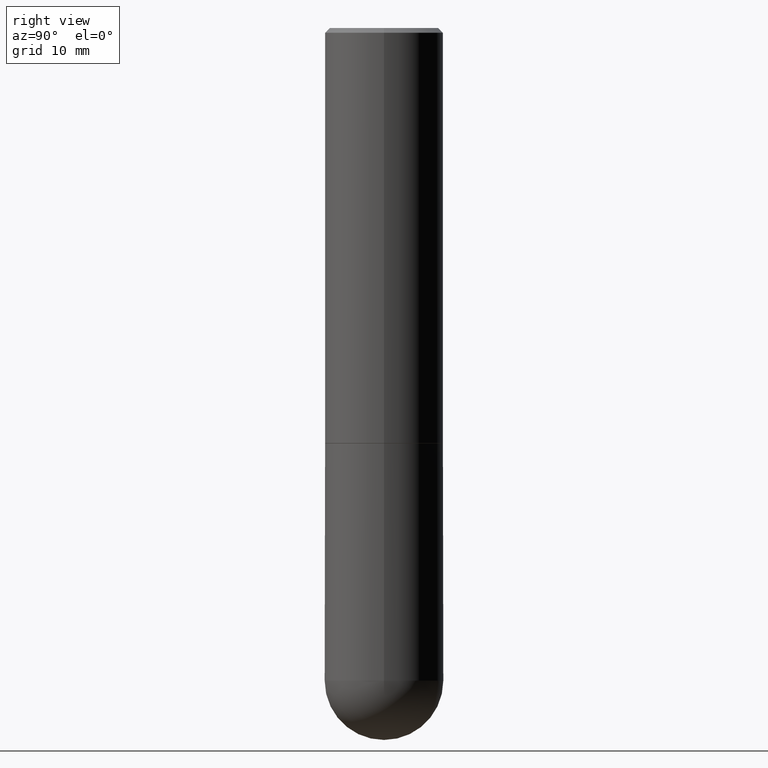
[diagram: clean part render]
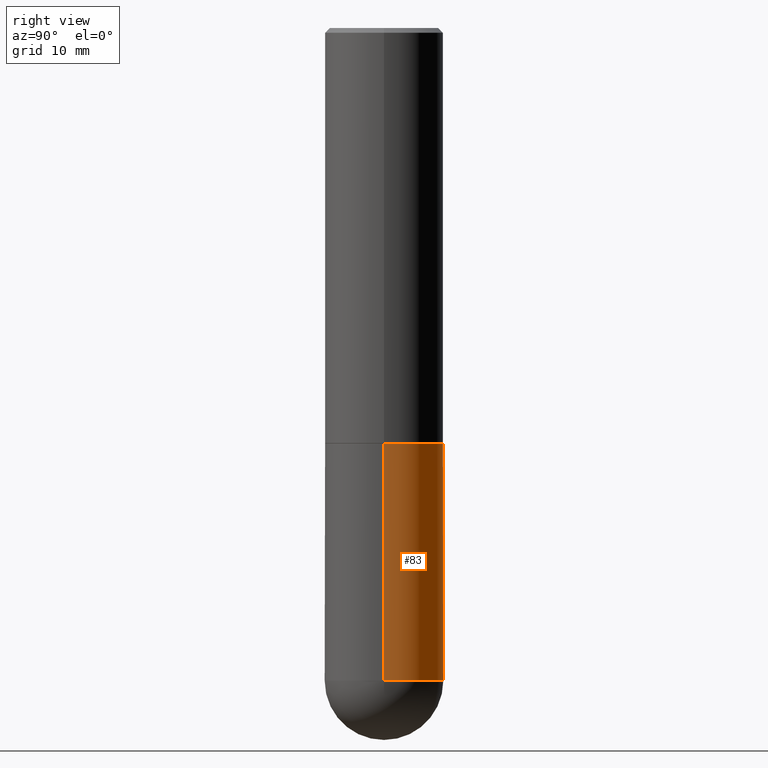
[diagram: same view with one face highlighted and labeled with its STEP entity id]
A machine part, right view. The second image highlights one B-rep face of the part: STEP entity #83.
In plain terms, the highlighted cylindrical surface (partial cylindrical patch) has radius 6.35 mm, axis along (-0, 0, 1).
Its self-contained STEP definition (entity closure, byte-faithful):
#10 = DIRECTION ( 'NONE',  ( -2.445468806185136877E-29, 3.491481338843145188E-15, 1.000000000000000000 ) ) ;
#18 = ORIENTED_EDGE ( 'NONE', *, *, #215, .T. ) ;
#21 = CARTESIAN_POINT ( 'NONE',  ( 1.745740669421632745E-15, 0.2499999999999902300, -2.750000000000000888 ) ) ;
#24 = VERTEX_POINT ( 'NONE', #149 ) ;
#26 = VERTEX_POINT ( 'NONE', #218 ) ;
#31 = AXIS2_PLACEMENT_3D ( 'NONE', #391, #107, #360 ) ;
#37 = EDGE_CURVE ( 'NONE', #24, #26, #257, .T. ) ;
#68 = AXIS2_PLACEMENT_3D ( 'NONE', #249, #211, #237 ) ;
#71 = DIRECTION ( 'NONE',  ( -2.445468806185136597E-29, 3.491481338843145583E-15, 1.000000000000000000 ) ) ;
#83 = ADVANCED_FACE ( 'NONE', ( #346 ), #158, .T. ) ;
#94 = VECTOR ( 'NONE', #10, 39.37007874015748143 ) ;
#100 = CARTESIAN_POINT ( 'NONE',  ( 0.000000000000000000, 0.000000000000000000, 0.000000000000000000 ) ) ;
#107 = DIRECTION ( 'NONE',  ( -2.445468806185136597E-29, 3.491481338843145583E-15, 1.000000000000000000 ) ) ;
#115 = VECTOR ( 'NONE', #286, 39.37007874015748143 ) ;
#116 = AXIS2_PLACEMENT_3D ( 'NONE', #302, #248, #208 ) ;
#149 = CARTESIAN_POINT ( 'NONE',  ( -0.2500000000000000000, -6.079476172996828773E-15, -2.750000000000000000 ) ) ;
#158 = CYLINDRICAL_SURFACE ( 'NONE', #220, 0.2500000000000000000 ) ;
#171 = ORIENTED_EDGE ( 'NONE', *, *, #276, .F. ) ;
#172 = EDGE_LOOP ( 'NONE', ( #18, #354, #222, #171, #336 ) ) ;
#183 = VERTEX_POINT ( 'NONE', #239 ) ;
#195 = CARTESIAN_POINT ( 'NONE',  ( 0.2500000000000000000, -1.745740669421566678E-15, 1.219044193948983948E-29 ) ) ;
#205 = CIRCLE ( 'NONE', #31, 0.2500000000000000000 ) ;
#208 = DIRECTION ( 'NONE',  ( 1.000000000000000000, -6.982962677686262766E-15, 0.000000000000000000 ) ) ;
#211 = DIRECTION ( 'NONE',  ( -2.445468806185136597E-29, 3.491481338843145583E-15, 1.000000000000000000 ) ) ;
#215 = EDGE_CURVE ( 'NONE', #357, #24, #277, .T. ) ;
#218 = CARTESIAN_POINT ( 'NONE',  ( -0.2500000000000000000, -6.079476172996827195E-15, -1.750000000000000222 ) ) ;
#220 = AXIS2_PLACEMENT_3D ( 'NONE', #100, #71, #387 ) ;
#222 = ORIENTED_EDGE ( 'NONE', *, *, #330, .F. ) ;
#237 = DIRECTION ( 'NONE',  ( 1.000000000000000000, -6.982962677686262766E-15, 0.000000000000000000 ) ) ;
#239 = CARTESIAN_POINT ( 'NONE',  ( 0.2500000000000000000, -7.855833012397072137E-15, -1.750000000000000222 ) ) ;
#248 = DIRECTION ( 'NONE',  ( -2.445468806185136597E-29, 3.491481338843145583E-15, 1.000000000000000000 ) ) ;
#249 = CARTESIAN_POINT ( 'NONE',  ( 6.725039217009124520E-29, -9.601573681818649859E-15, -2.750000000000000000 ) ) ;
#252 = CARTESIAN_POINT ( 'NONE',  ( 0.2500000000000000000, -9.601573681818646704E-15, -2.750000000000000000 ) ) ;
#257 = LINE ( 'NONE', #321, #115 ) ;
#276 = EDGE_CURVE ( 'NONE', #405, #183, #293, .T. ) ;
#277 = CIRCLE ( 'NONE', #68, 0.2500000000000000000 ) ;
#286 = DIRECTION ( 'NONE',  ( -2.445468806185136877E-29, 3.491481338843145188E-15, 1.000000000000000000 ) ) ;
#293 = LINE ( 'NONE', #195, #94 ) ;
#302 = CARTESIAN_POINT ( 'NONE',  ( 6.725039217009124520E-29, -9.601573681818649859E-15, -2.750000000000000000 ) ) ;
#321 = CARTESIAN_POINT ( 'NONE',  ( -0.2500000000000000000, 1.776356839400250465E-15, -1.229733772563726445E-29 ) ) ;
#330 = EDGE_CURVE ( 'NONE', #183, #26, #205, .T. ) ;
#336 = ORIENTED_EDGE ( 'NONE', *, *, #351, .T. ) ;
#346 = FACE_OUTER_BOUND ( 'NONE', #172, .T. ) ;
#351 = EDGE_CURVE ( 'NONE', #405, #357, #359, .T. ) ;
#354 = ORIENTED_EDGE ( 'NONE', *, *, #37, .T. ) ;
#357 = VERTEX_POINT ( 'NONE', #21 ) ;
#359 = CIRCLE ( 'NONE', #116, 0.2500000000000000000 ) ;
#360 = DIRECTION ( 'NONE',  ( 1.000000000000000000, -6.982962677686266711E-15, 0.000000000000000000 ) ) ;
#387 = DIRECTION ( 'NONE',  ( 1.000000000000000000, -6.982962677686266711E-15, 4.876176775795935793E-29 ) ) ;
#391 = CARTESIAN_POINT ( 'NONE',  ( 4.279570410823989044E-29, -6.110092342975505460E-15, -1.750000000000000222 ) ) ;
#405 = VERTEX_POINT ( 'NONE', #252 ) ;